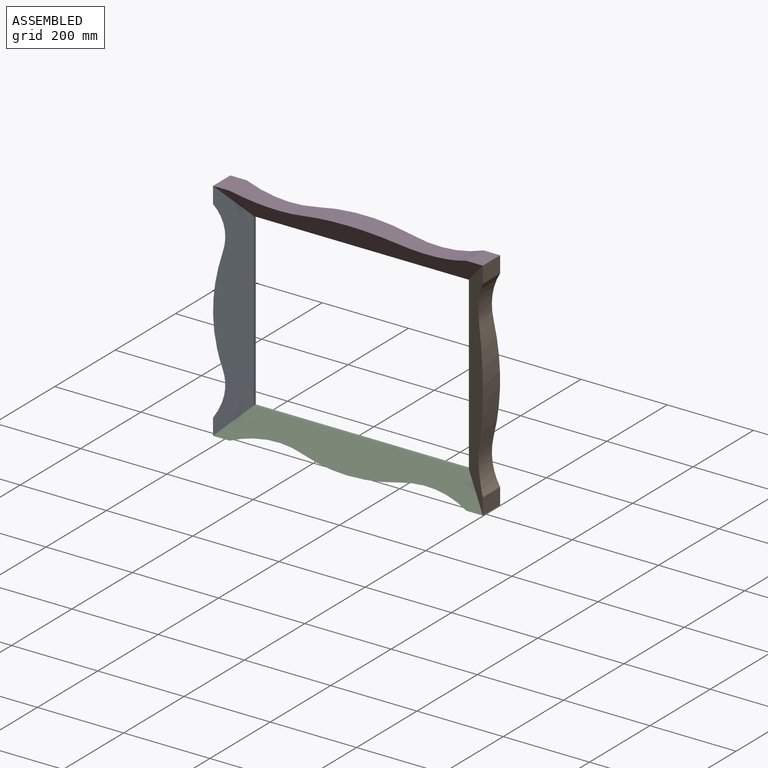
[diagram: assembled view]
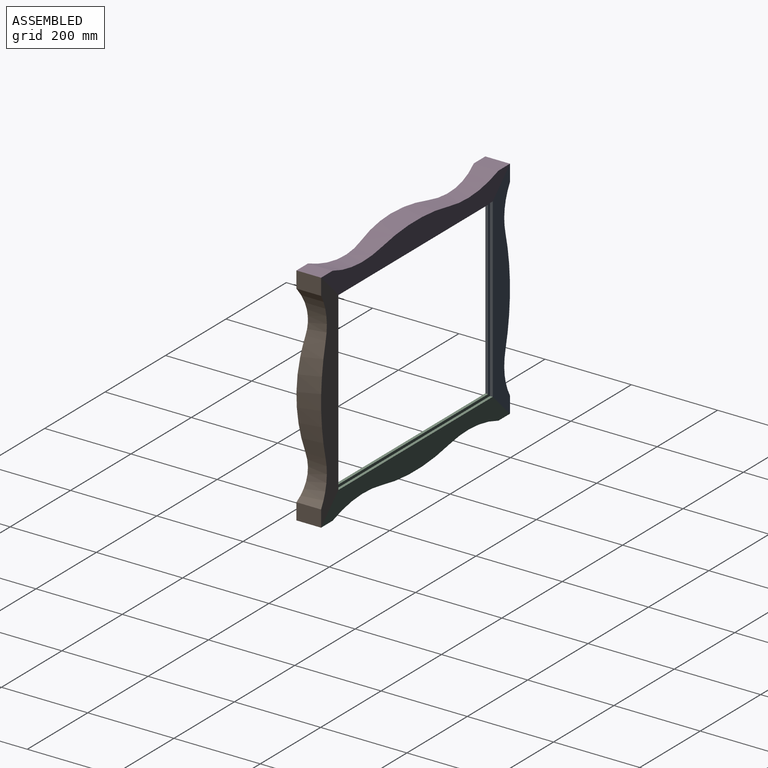
[diagram: assembled view, second angle]
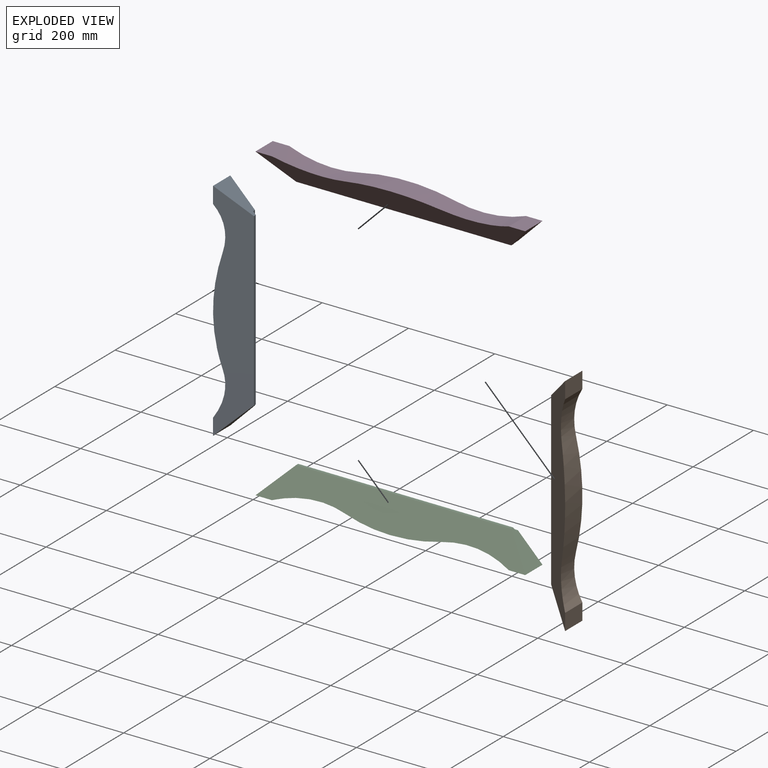
[diagram: exploded view]
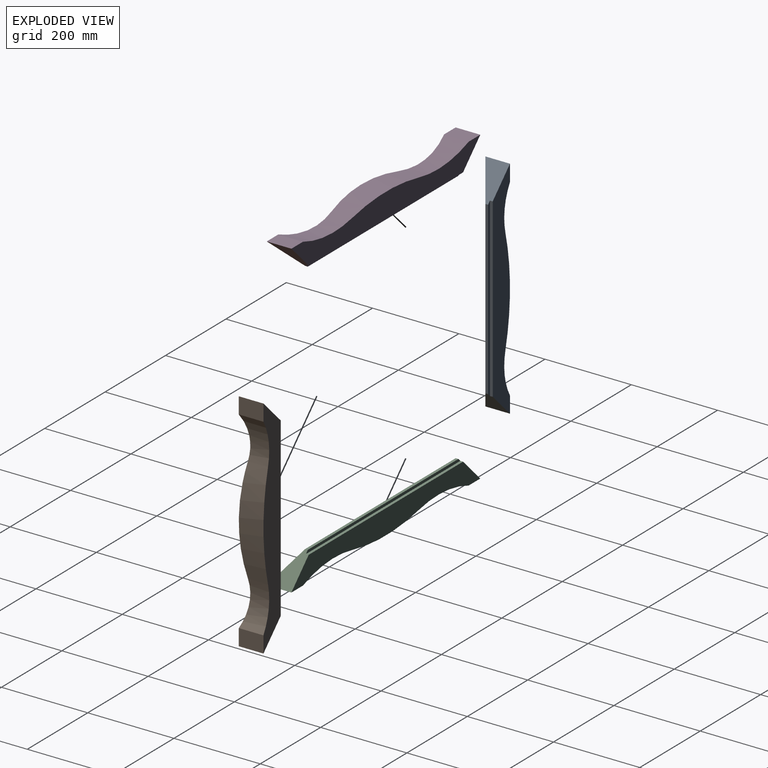
[diagram: exploded view, second angle]
ASSEMBLY  parts=4 mates=3
PART A: 12 faces, bbox 523.9x57.2x63.5 mm
  f0: plane 523.88x57.15mm, normal (0,1,0), area 22529mm2, adj f3,f5,f6,f7,f8,f9,f10,f11
  f1: plane 396.88x6.35mm, normal (0,0,-1), area 2520.2mm2, adj f2,f4,f10,f11
  f2: plane 523.88x63.5mm, normal (0,-0.82,-0.57), area 30625.6mm2, adj f1,f5,f6,f7,f8,f9,f10,f11
  f3: plane 409.58x6.35mm, normal (0,0,-1), area 2600.8mm2, adj f0,f4,f10,f11
  f4: plane 409.58x6.35mm, normal (0,1,0), area 2560.5mm2, adj f1,f3,f10,f11
  f5: plane 57.15x38.1mm, normal (0,0,1), area 2177.4mm2, adj f0,f2,f7,f11
  f6: plane 57.15x38.1mm, normal (0,0,1), area 2177.4mm2, adj f0,f2,f9,f10
  f7: cylinder r=133.35mm len=100.94mm, axis (0,1,0), area 4943.1mm2, adj f0,f2,f5,f8
  f8: cylinder r=508mm len=245.79mm, axis (0,1,0), area 13311.8mm2, adj f0,f2,f7,f9
  f9: cylinder r=133.35mm len=100.94mm, axis (0,1,0), area 4943.1mm2, adj f0,f2,f6,f8
  f10: plane 63.5x63.5mm, normal (-0.71,0,-0.71), area 3079.3mm2, adj f0,f1,f2,f3,f4,f6
  f11: plane 63.5x63.5mm, normal (0.71,0,-0.71), area 3079.3mm2, adj f0,f1,f2,f3,f4,f5
PART B: same geometry as A
PART C: 12 faces, bbox 625.5x57.2x63.5 mm
  f0: plane 625.48x57.15mm, normal (0,1,0), area 26896.4mm2, adj f3,f5,f6,f7,f8,f9,f10,f11
  f1: plane 498.48x6.35mm, normal (0,0,-1), area 3165.3mm2, adj f2,f4,f10,f11
  f2: plane 625.48x63.5mm, normal (0,-0.82,-0.57), area 36744.2mm2, adj f1,f5,f6,f7,f8,f9,f10,f11
  f3: plane 511.18x6.35mm, normal (0,0,-1), area 3246mm2, adj f0,f4,f10,f11
  f4: plane 511.18x6.35mm, normal (0,1,0), area 3205.6mm2, adj f1,f3,f10,f11
  f5: plane 57.15x38.1mm, normal (0,0,1), area 2177.4mm2, adj f0,f2,f7,f11
  f6: plane 57.15x38.1mm, normal (0,0,1), area 2177.4mm2, adj f0,f2,f9,f10
  f7: cylinder r=283.03mm len=163.82mm, axis (0,1,0), area 7868.4mm2, adj f0,f2,f5,f8
  f8: cylinder r=508mm len=221.63mm, axis (0,1,0), area 12130mm2, adj f0,f2,f7,f9
  f9: cylinder r=283.03mm len=163.82mm, axis (0,1,0), area 7868.4mm2, adj f0,f2,f6,f8
  f10: plane 63.5x63.5mm, normal (-0.71,0,-0.71), area 3079.3mm2, adj f0,f1,f2,f3,f4,f6
  f11: plane 63.5x63.5mm, normal (0.71,0,-0.71), area 3079.3mm2, adj f0,f1,f2,f3,f4,f5
PART D: same geometry as C
PLACE A rot(axis=(0,-1,0),90deg) t=(-280.99,0,-230.19)mm
PLACE B rot(axis=(0,1,0),90deg) t=(280.99,0,-230.19)mm
PLACE C rot(axis=(0,-1,0),180deg) t=(0,0,-460.38)mm
PLACE D at identity fixed
MATE fastened D.f11 <-> B.f10  axis (0.71,0,-0.71) through (288.38,-20.13,7.39)mm
MATE fastened D.f10 <-> A.f11  axis (-0.71,0,-0.71) through (-288.38,-20.13,7.39)mm
MATE fastened C.f11 <-> A.f10  axis (-0.71,0,0.71) through (-288.38,-20.13,-467.76)mm
